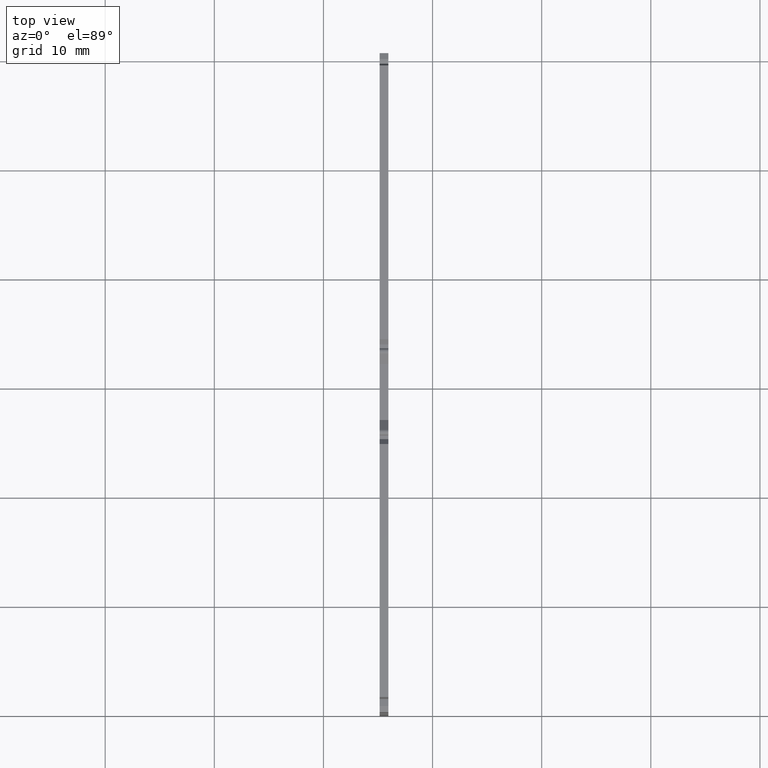
[diagram: clean part render]
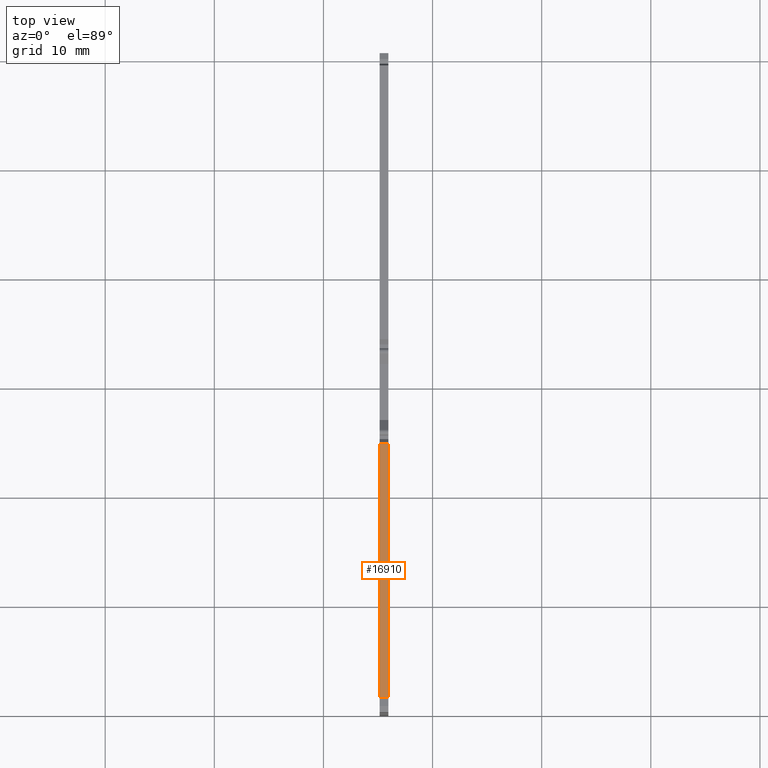
[diagram: same view with one face highlighted and labeled with its STEP entity id]
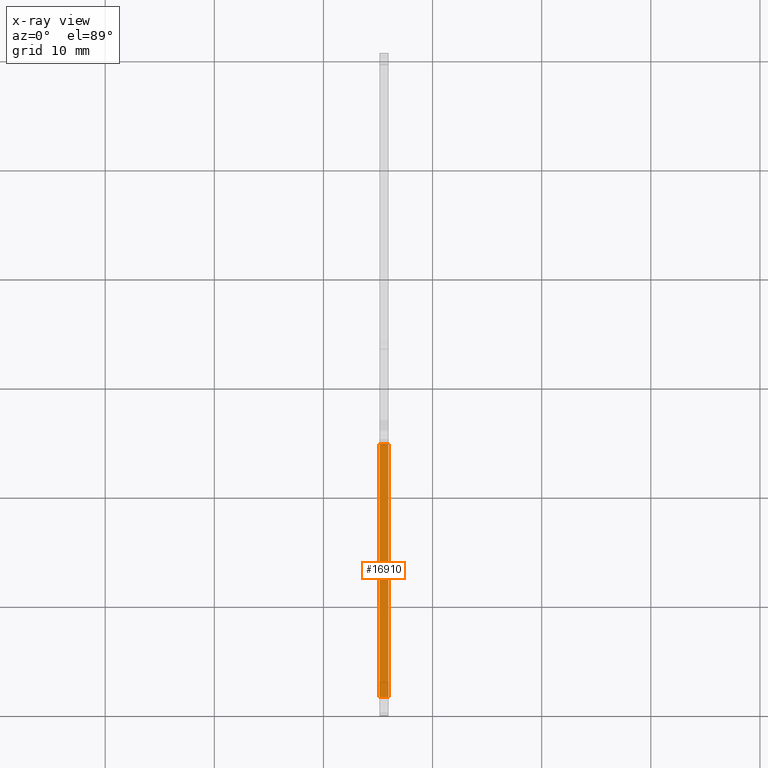
[diagram: x-ray of the same camera — body ghosted, the highlighted face saturated]
A machine part, top view. The second image highlights one B-rep face of the part: STEP entity #16910.
The next image is the same camera in x-ray: the body ghosted, the highlighted face saturated — about 0% of this face is hidden behind the body in this view.
In plain terms, the highlighted planar face has unit normal (-0, -0, -1).
Its self-contained STEP definition (entity closure, byte-faithful):
#3360=CARTESIAN_POINT('',(5.15000000000215,24.4514317309689,
35.2499999999839));
#3370=VERTEX_POINT('',#3360);
#3400=CARTESIAN_POINT('',(5.15000000000215,-11.6296808260461,
35.2499999999885));
#3410=DIRECTION('',(-2.6054385416317E-18,-1.,1.26176846748649E-13));
#3420=VECTOR('',#3410,1.);
#3430=LINE('',#3400,#3420);
#3440=CARTESIAN_POINT('',(5.15000000000215,1.25660363491963,
35.2499999999869));
#3450=VERTEX_POINT('',#3440);
#3460=EDGE_CURVE('',#3370,#3450,#3430,.T.);
#4390=CARTESIAN_POINT('',(5.95000000000216,1.25660363491963,
35.2499999999869));
#4400=VERTEX_POINT('',#4390);
#4430=CARTESIAN_POINT('',(5.95000000000216,-11.6296808260461,
35.2499999999885));
#4440=DIRECTION('',(-5.81165897728895E-17,-1.,1.26176846748649E-13));
#4450=VECTOR('',#4440,1.);
#4460=LINE('',#4430,#4450);
#4470=CARTESIAN_POINT('',(5.95000000000216,24.4514317309689,
35.2499999999839));
#4480=VERTEX_POINT('',#4470);
#4490=EDGE_CURVE('',#4480,#4400,#4460,.T.);
#16330=CARTESIAN_POINT('',(3.80000000000219,1.25660363491963,
35.2499999999869));
#16340=DIRECTION('',(-1.,2.60543854163171E-18,1.33890298021342E-29));
#16350=VECTOR('',#16340,1.);
#16360=LINE('',#16330,#16350);
#16370=EDGE_CURVE('',#4400,#3450,#16360,.T.);
#16750=CARTESIAN_POINT('',(5.15000000000215,24.3629353323752,
35.2499999999839));
#16760=DIRECTION('',(-1.37200394007299E-29,-1.26176846748649E-13,-1.));
#16770=DIRECTION('',(2.6054385416317E-18,1.,-1.26176846748649E-13));
#16780=AXIS2_PLACEMENT_3D('',#16750,#16760,#16770);
#16790=PLANE('',#16780);
#16800=CARTESIAN_POINT('',(3.80000000000219,24.4514317309689,
35.2499999999839));
#16810=DIRECTION('',(-1.,2.6054385416317E-18,1.33934243815799E-29));
#16820=VECTOR('',#16810,1.);
#16830=LINE('',#16800,#16820);
#16840=EDGE_CURVE('',#4480,#3370,#16830,.T.);
#16850=ORIENTED_EDGE('',*,*,#16840,.T.);
#16860=ORIENTED_EDGE('',*,*,#4490,.F.);
#16870=ORIENTED_EDGE('',*,*,#16370,.F.);
#16880=ORIENTED_EDGE('',*,*,#3460,.T.);
#16890=EDGE_LOOP('',(#16880,#16870,#16860,#16850));
#16900=FACE_OUTER_BOUND('',#16890,.T.);
#16910=ADVANCED_FACE('',(#16900),#16790,.F.);